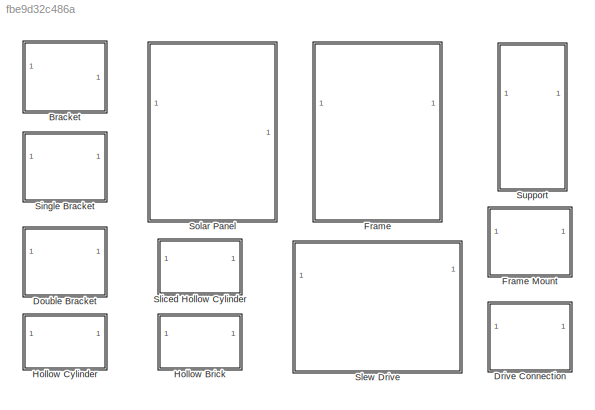
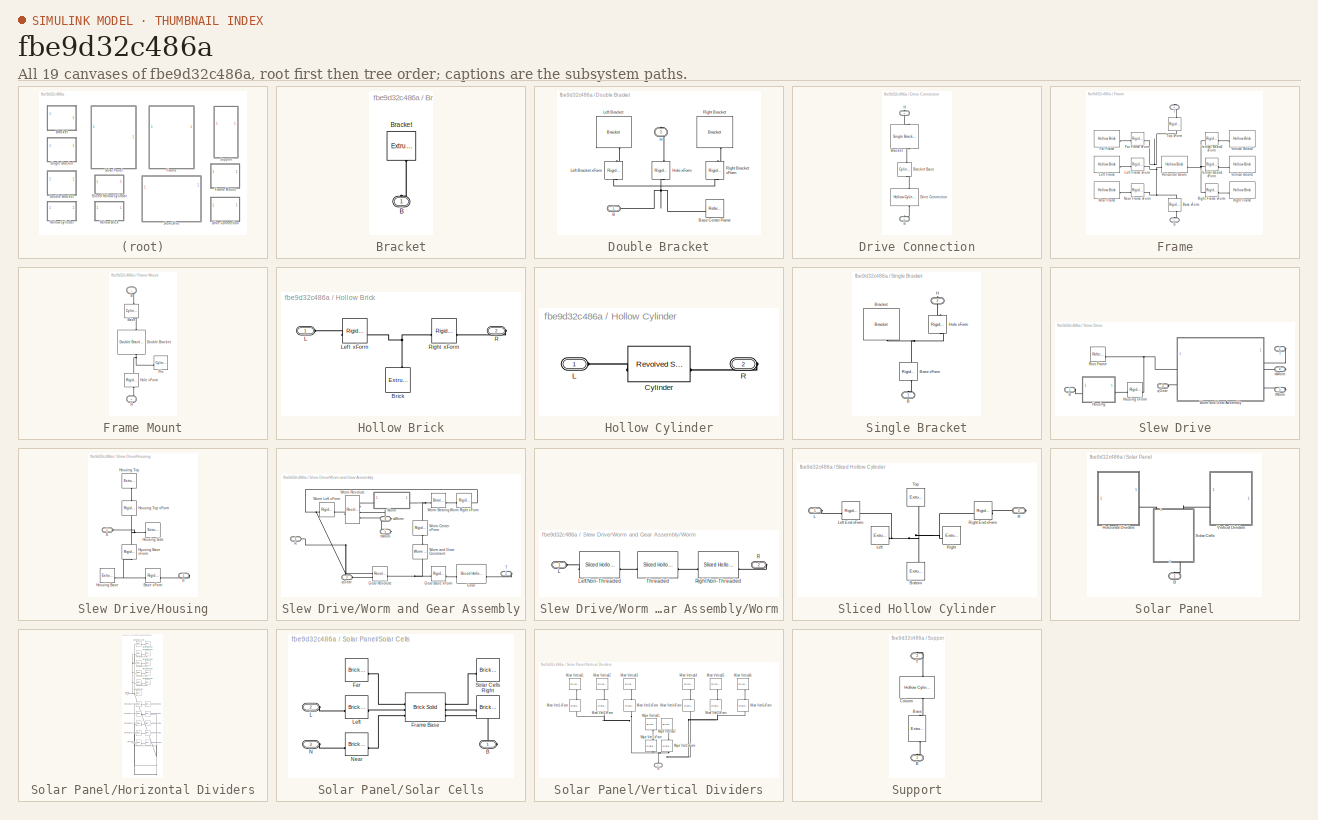
[diagram: thumbnail index - all 19 canvases of the model, root first then tree order]
MODEL slx_fbe9d32c486a
KIND library
CONFIG AbsTol = auto
CONFIG EnableMultiTasking = off
CONFIG FixedStep = auto
CONFIG MaxStep = auto
CONFIG MinStep = auto
CONFIG RelTol = 1e-3
CONFIG SampleTimeConstraint = Unconstrained
CONFIG SolverName = VariableStepAuto
CONFIG StartTime = 0.0
CONFIG StopTime = 10.0
BLOCK [SubSystem] Bracket
BLOCK [PMIOPort] Bracket/B
  NameLocation = right
  Side = Left
BLOCK [Reference] Bracket/Bracket  REF=sm_lib/Body Elements/Extruded Solid
  NameLocation = right
  SourceBlock = sm_lib/Body Elements/Extruded Solid
  SourceType = Extruded Solid
BLOCK [SubSystem] Double Bracket
BLOCK [PMIOPort] Double Bracket/B
  Side = Left
BLOCK [Reference] Double Bracket/Base Center Frame  REF=sm_lib/Frames and
Transforms/Reference
Frame
  SourceBlock = sm_lib/Frames and\nTransforms/Reference\nFrame
  SourceType = Reference\nFrame
BLOCK [PMIOPort] Double Bracket/H
  NameLocation = right
  Port = 2
  Side = Right
BLOCK [Reference] Double Bracket/Hole xForm  REF=sm_lib/Frames and
Transforms/Rigid
Transform
  NameLocation = right
  SourceBlock = sm_lib/Frames and\nTransforms/Rigid\nTransform
  SourceType = Rigid\nTransform
BLOCK [Reference] Double Bracket/Left Bracket  REF=$bdroot/Bracket
  NameLocation = left
  SourceBlock = $bdroot/Bracket
  SourceType = Bracket
BLOCK [Reference] Double Bracket/Left Bracket xForm  REF=sm_lib/Frames and
Transforms/Rigid
Transform
  NameLocation = left
  SourceBlock = sm_lib/Frames and\nTransforms/Rigid\nTransform
  SourceType = Rigid\nTransform
BLOCK [Reference] Double Bracket/Right Bracket  REF=$bdroot/Bracket
  NameLocation = right
  SourceBlock = $bdroot/Bracket
  SourceType = Bracket
BLOCK [Reference] Double Bracket/Right Bracket xForm  REF=sm_lib/Frames and
Transforms/Rigid
Transform
  NameLocation = right
  SourceBlock = sm_lib/Frames and\nTransforms/Rigid\nTransform
  SourceType = Rigid\nTransform
BLOCK [SubSystem] Drive Connection
BLOCK [PMIOPort] Drive Connection/B
  NameLocation = left
  Side = Left
BLOCK [Reference] Drive Connection/Bracket  REF=$bdroot/Single Bracket
  NameLocation = left
  SourceBlock = $bdroot/Single Bracket
  SourceType = Single Bracket
BLOCK [Reference] Drive Connection/Bracket Base  REF=sm_lib/Body Elements/Cylindrical Solid
  NameLocation = left
  SourceBlock = sm_lib/Body Elements/Cylindrical Solid
  SourceType = Cylindrical Solid
BLOCK [Reference] Drive Connection/Drive Connection  REF=$bdroot/Hollow Cylinder
  NameLocation = left
  SourceBlock = $bdroot/Hollow Cylinder
  SourceType = Hollow Cylinder
BLOCK [PMIOPort] Drive Connection/H
  NameLocation = left
  Port = 2
  Side = Right
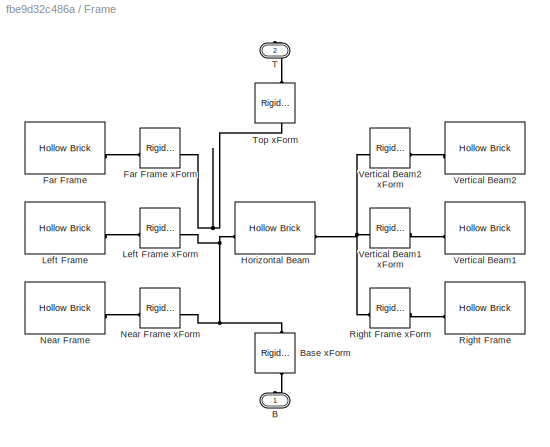
BLOCK [SubSystem] Frame
BLOCK [SubSystem] Frame Mount
BLOCK [PMIOPort] Frame Mount/B
  NameLocation = left
  Side = Left
BLOCK [Reference] Frame Mount/Base  REF=sm_lib/Body Elements/Cylindrical Solid
  NameLocation = left
  SourceBlock = sm_lib/Body Elements/Cylindrical Solid
  SourceType = Cylindrical Solid
BLOCK [Reference] Frame Mount/Double Bracket  REF=$bdroot/Double Bracket
  NameLocation = left
  SourceBlock = $bdroot/Double Bracket
  SourceType = Double Bracket
BLOCK [PMIOPort] Frame Mount/H
  NameLocation = left
  Port = 2
  Side = Right
BLOCK [Reference] Frame Mount/Hole xForm  REF=sm_lib/Frames and
Transforms/Rigid
Transform
  NameLocation = left
  SourceBlock = sm_lib/Frames and\nTransforms/Rigid\nTransform
  SourceType = Rigid\nTransform
BLOCK [Reference] Frame Mount/Pin  REF=sm_lib/Body Elements/Cylindrical Solid
  SourceBlock = sm_lib/Body Elements/Cylindrical Solid
  SourceType = Cylindrical Solid
BLOCK [PMIOPort] Frame/B
  NameLocation = right
  Side = Left
BLOCK [Reference] Frame/Base xForm  REF=sm_lib/Frames and
Transforms/Rigid
Transform
  NameLocation = left
  SourceBlock = sm_lib/Frames and\nTransforms/Rigid\nTransform
  SourceType = Rigid\nTransform
BLOCK [Reference] Frame/Far Frame  REF=$bdroot/Hollow Brick
  SourceBlock = $bdroot/Hollow Brick
  SourceType = Hollow Brick
BLOCK [Reference] Frame/Far Frame xForm  REF=sm_lib/Frames and
Transforms/Rigid
Transform
  SourceBlock = sm_lib/Frames and\nTransforms/Rigid\nTransform
  SourceType = Rigid\nTransform
BLOCK [Reference] Frame/Horizontal Beam  REF=$bdroot/Hollow Brick
  SourceBlock = $bdroot/Hollow Brick
  SourceType = Hollow Brick
BLOCK [Reference] Frame/Left Frame  REF=$bdroot/Hollow Brick
  SourceBlock = $bdroot/Hollow Brick
  SourceType = Hollow Brick
BLOCK [Reference] Frame/Left Frame xForm  REF=sm_lib/Frames and
Transforms/Rigid
Transform
  SourceBlock = sm_lib/Frames and\nTransforms/Rigid\nTransform
  SourceType = Rigid\nTransform
BLOCK [Reference] Frame/Near Frame  REF=$bdroot/Hollow Brick
  SourceBlock = $bdroot/Hollow Brick
  SourceType = Hollow Brick
BLOCK [Reference] Frame/Near Frame xForm  REF=sm_lib/Frames and
Transforms/Rigid
Transform
  SourceBlock = sm_lib/Frames and\nTransforms/Rigid\nTransform
  SourceType = Rigid\nTransform
BLOCK [Reference] Frame/Right Frame  REF=$bdroot/Hollow Brick
  SourceBlock = $bdroot/Hollow Brick
  SourceType = Hollow Brick
BLOCK [Reference] Frame/Right Frame xForm  REF=sm_lib/Frames and
Transforms/Rigid
Transform
  SourceBlock = sm_lib/Frames and\nTransforms/Rigid\nTransform
  SourceType = Rigid\nTransform
BLOCK [PMIOPort] Frame/T
  NameLocation = left
  Port = 2
  Side = Right
BLOCK [Reference] Frame/Top xForm  REF=sm_lib/Frames and
Transforms/Rigid
Transform
  NameLocation = left
  SourceBlock = sm_lib/Frames and\nTransforms/Rigid\nTransform
  SourceType = Rigid\nTransform
BLOCK [Reference] Frame/Vertical Beam1  REF=$bdroot/Hollow Brick
  SourceBlock = $bdroot/Hollow Brick
  SourceType = Hollow Brick
BLOCK [Reference] Frame/Vertical Beam1 xForm  REF=sm_lib/Frames and
Transforms/Rigid
Transform
  SourceBlock = sm_lib/Frames and\nTransforms/Rigid\nTransform
  SourceType = Rigid\nTransform
BLOCK [Reference] Frame/Vertical Beam2  REF=$bdroot/Hollow Brick
  SourceBlock = $bdroot/Hollow Brick
  SourceType = Hollow Brick
BLOCK [Reference] Frame/Vertical Beam2 xForm  REF=sm_lib/Frames and
Transforms/Rigid
Transform
  SourceBlock = sm_lib/Frames and\nTransforms/Rigid\nTransform
  SourceType = Rigid\nTransform
BLOCK [SubSystem] Hollow Brick
BLOCK [Reference] Hollow Brick/Brick  REF=sm_lib/Body Elements/Extruded Solid
  NameLocation = right
  SourceBlock = sm_lib/Body Elements/Extruded Solid
  SourceType = Extruded Solid
BLOCK [PMIOPort] Hollow Brick/L
  Side = Left
BLOCK [Reference] Hollow Brick/Left xForm  REF=sm_lib/Frames and
Transforms/Rigid
Transform
  SourceBlock = sm_lib/Frames and\nTransforms/Rigid\nTransform
  SourceType = Rigid\nTransform
BLOCK [PMIOPort] Hollow Brick/R
  Port = 2
  Side = Right
BLOCK [Reference] Hollow Brick/Right xForm  REF=sm_lib/Frames and
Transforms/Rigid
Transform
  SourceBlock = sm_lib/Frames and\nTransforms/Rigid\nTransform
  SourceType = Rigid\nTransform
BLOCK [SubSystem] Hollow Cylinder
BLOCK [Reference] Hollow Cylinder/Cylinder  REF=sm_lib/Body Elements/Revolved Solid
  SourceBlock = sm_lib/Body Elements/Revolved Solid
  SourceType = Revolved Solid
BLOCK [PMIOPort] Hollow Cylinder/L
  Side = Left
BLOCK [PMIOPort] Hollow Cylinder/R
  Port = 2
  Side = Right
BLOCK [SubSystem] Single Bracket
BLOCK [PMIOPort] Single Bracket/B
  NameLocation = right
  Side = Left
BLOCK [Reference] Single Bracket/Base xForm  REF=sm_lib/Frames and
Transforms/Rigid
Transform
  NameLocation = left
  SourceBlock = sm_lib/Frames and\nTransforms/Rigid\nTransform
  SourceType = Rigid\nTransform
BLOCK [Reference] Single Bracket/Bracket  REF=$bdroot/Bracket
  NameLocation = left
  SourceBlock = $bdroot/Bracket
  SourceType = Bracket
BLOCK [PMIOPort] Single Bracket/H
  NameLocation = right
  Port = 2
  Side = Right
BLOCK [Reference] Single Bracket/Hole xForm  REF=sm_lib/Frames and
Transforms/Rigid
Transform
  NameLocation = right
  SourceBlock = sm_lib/Frames and\nTransforms/Rigid\nTransform
  SourceType = Rigid\nTransform
BLOCK [SubSystem] Slew Drive
  LibrarySourceBlock = sm_solar_tracker_lib/Slew Drive
BLOCK [PMIOPort] Slew Drive/B
  Side = Left
BLOCK [SubSystem] Slew Drive/Housing
BLOCK [Reference] Slew Drive/Housing xForm  REF=sm_lib/Frames and
Transforms/Rigid
Transform
  SourceBlock = sm_lib/Frames and\nTransforms/Rigid\nTransform
  SourceType = Rigid\nTransform
BLOCK [PMIOPort] Slew Drive/Housing/B
  Port = 2
  Side = Right
BLOCK [Reference] Slew Drive/Housing/Base xForm  REF=sm_lib/Frames and
Transforms/Rigid
Transform
  SourceBlock = sm_lib/Frames and\nTransforms/Rigid\nTransform
  SourceType = Rigid\nTransform
BLOCK [Reference] Slew Drive/Housing/Housing Base  REF=sm_lib/Body Elements/Extruded Solid
  SourceBlock = sm_lib/Body Elements/Extruded Solid
  SourceType = Extruded Solid
BLOCK [Reference] Slew Drive/Housing/Housing Base xForm  REF=sm_lib/Frames and
Transforms/Rigid
Transform
  NameLocation = left
  SourceBlock = sm_lib/Frames and\nTransforms/Rigid\nTransform
  SourceType = Rigid\nTransform
BLOCK [Reference] Slew Drive/Housing/Housing Side  REF=sm_lib/Body Elements/Extruded Solid
  SourceBlock = sm_lib/Body Elements/Extruded Solid
  SourceType = Extruded Solid
BLOCK [Reference] Slew Drive/Housing/Housing Top  REF=sm_lib/Body Elements/Extruded Solid
  NameLocation = left
  SourceBlock = sm_lib/Body Elements/Extruded Solid
  SourceType = Extruded Solid
BLOCK [Reference] Slew Drive/Housing/Housing Top xForm  REF=sm_lib/Frames and
Transforms/Rigid
Transform
  NameLocation = left
  SourceBlock = sm_lib/Frames and\nTransforms/Rigid\nTransform
  SourceType = Rigid\nTransform
BLOCK [PMIOPort] Slew Drive/Housing/S
  Side = Left
BLOCK [Reference] Slew Drive/Root Frame  REF=sm_lib/Frames and
Transforms/Reference
Frame
  SourceBlock = sm_lib/Frames and\nTransforms/Reference\nFrame
  SourceType = Reference\nFrame
BLOCK [PMIOPort] Slew Drive/T
  Port = 2
  Side = Right
BLOCK [SubSystem] Slew Drive/Worm and Gear Assembly
BLOCK [Reference] Slew Drive/Worm and Gear Assembly/Gear  REF=$bdroot/Sliced Hollow Cylinder
  SourceBlock = $bdroot/Sliced Hollow Cylinder
  SourceType = Sliced Hollow Cylinder
BLOCK [Reference] Slew Drive/Worm and Gear Assembly/Gear Base xForm  REF=sm_lib/Frames and
Transforms/Rigid
Transform
  SourceBlock = sm_lib/Frames and\nTransforms/Rigid\nTransform
  SourceType = Rigid\nTransform
BLOCK [Reference] Slew Drive/Worm and Gear Assembly/Gear Revolute  REF=sm_lib/Joints/Revolute Joint
  SourceBlock = sm_lib/Joints/Revolute Joint
  SourceType = Revolute Joint
BLOCK [PMIOPort] Slew Drive/Worm and Gear Assembly/R
  Side = Left
BLOCK [PMIOPort] Slew Drive/Worm and Gear Assembly/T
  Port = 2
  Side = Right
BLOCK [SubSystem] Slew Drive/Worm and Gear Assembly/Worm
BLOCK [Reference] Slew Drive/Worm and Gear Assembly/Worm Bearing  REF=sm_lib/Joints/Bearing Joint
  SourceBlock = sm_lib/Joints/Bearing Joint
  SourceType = Bearing Joint
BLOCK [Reference] Slew Drive/Worm and Gear Assembly/Worm Center xForm  REF=sm_lib/Frames and
Transforms/Rigid
Transform
  NameLocation = right
  SourceBlock = sm_lib/Frames and\nTransforms/Rigid\nTransform
  SourceType = Rigid\nTransform
BLOCK [Reference] Slew Drive/Worm and Gear Assembly/Worm Left xForm  REF=sm_lib/Frames and
Transforms/Rigid
Transform
  SourceBlock = sm_lib/Frames and\nTransforms/Rigid\nTransform
  SourceType = Rigid\nTransform
BLOCK [Reference] Slew Drive/Worm and Gear Assembly/Worm Revolute  REF=sm_lib/Joints/Revolute Joint
  SourceBlock = sm_lib/Joints/Revolute Joint
  SourceType = Revolute Joint
BLOCK [Reference] Slew Drive/Worm and Gear Assembly/Worm Right xForm  REF=sm_lib/Frames and
Transforms/Rigid
Transform
  SourceBlock = sm_lib/Frames and\nTransforms/Rigid\nTransform
  SourceType = Rigid\nTransform
BLOCK [Reference] Slew Drive/Worm and Gear Assembly/Worm and Gear Constraint  REF=sm_lib/Gears and
Couplings/Gears/Worm and Gear
Constraint
  NameLocation = right
  SourceBlock = sm_lib/Gears and\nCouplings/Gears/Worm and Gear\nConstraint
  SourceType = Worm and Gear\nConstraint
BLOCK [PMIOPort] Slew Drive/Worm and Gear Assembly/Worm/L
  Side = Left
BLOCK [Reference] Slew Drive/Worm and Gear Assembly/Worm/Left Non-Threaded  REF=$bdroot/Sliced Hollow Cylinder
  SourceBlock = $bdroot/Sliced Hollow Cylinder
  SourceType = Sliced Hollow Cylinder
BLOCK [PMIOPort] Slew Drive/Worm and Gear Assembly/Worm/R
  Port = 2
  Side = Right
BLOCK [Reference] Slew Drive/Worm and Gear Assembly/Worm/Right Non-Threaded  REF=$bdroot/Sliced Hollow Cylinder
  SourceBlock = $bdroot/Sliced Hollow Cylinder
  SourceType = Sliced Hollow Cylinder
BLOCK [Reference] Slew Drive/Worm and Gear Assembly/Worm/Threaded  REF=$bdroot/Sliced Hollow Cylinder
  SourceBlock = $bdroot/Sliced Hollow Cylinder
  SourceType = Sliced Hollow Cylinder
BLOCK [PMIOPort] Slew Drive/Worm and Gear Assembly/qGear
  Port = 3
  Side = Left
BLOCK [PMIOPort] Slew Drive/Worm and Gear Assembly/tWorm
  Port = 5
  Side = Right
BLOCK [PMIOPort] Slew Drive/Worm and Gear Assembly/wWorm
  Port = 4
  Side = Right
BLOCK [PMIOPort] Slew Drive/qGear
  Port = 3
  Side = Left
BLOCK [PMIOPort] Slew Drive/tWorm
  Port = 5
  Side = Right
BLOCK [PMIOPort] Slew Drive/wWorm
  Port = 4
  Side = Right
BLOCK [SubSystem] Sliced Hollow Cylinder
BLOCK [Reference] Sliced Hollow Cylinder/Bottom  REF=sm_lib/Body Elements/Extruded Solid
  NameLocation = left
  SourceBlock = sm_lib/Body Elements/Extruded Solid
  SourceType = Extruded Solid
BLOCK [PMIOPort] Sliced Hollow Cylinder/L
  Side = Left
BLOCK [Reference] Sliced Hollow Cylinder/Left  REF=sm_lib/Body Elements/Extruded Solid
  SourceBlock = sm_lib/Body Elements/Extruded Solid
  SourceType = Extruded Solid
BLOCK [Reference] Sliced Hollow Cylinder/Left End xForm  REF=sm_lib/Frames and
Transforms/Rigid
Transform
  SourceBlock = sm_lib/Frames and\nTransforms/Rigid\nTransform
  SourceType = Rigid\nTransform
BLOCK [PMIOPort] Sliced Hollow Cylinder/R
  Port = 2
  Side = Right
BLOCK [Reference] Sliced Hollow Cylinder/Right  REF=sm_lib/Body Elements/Extruded Solid
  SourceBlock = sm_lib/Body Elements/Extruded Solid
  SourceType = Extruded Solid
BLOCK [Reference] Sliced Hollow Cylinder/Right End xForm  REF=sm_lib/Frames and
Transforms/Rigid
Transform
  SourceBlock = sm_lib/Frames and\nTransforms/Rigid\nTransform
  SourceType = Rigid\nTransform
BLOCK [Reference] Sliced Hollow Cylinder/Top  REF=sm_lib/Body Elements/Extruded Solid
  NameLocation = left
  SourceBlock = sm_lib/Body Elements/Extruded Solid
  SourceType = Extruded Solid
BLOCK [SubSystem] Solar Panel
BLOCK [PMIOPort] Solar Panel/B
  NameLocation = right
  Side = Left
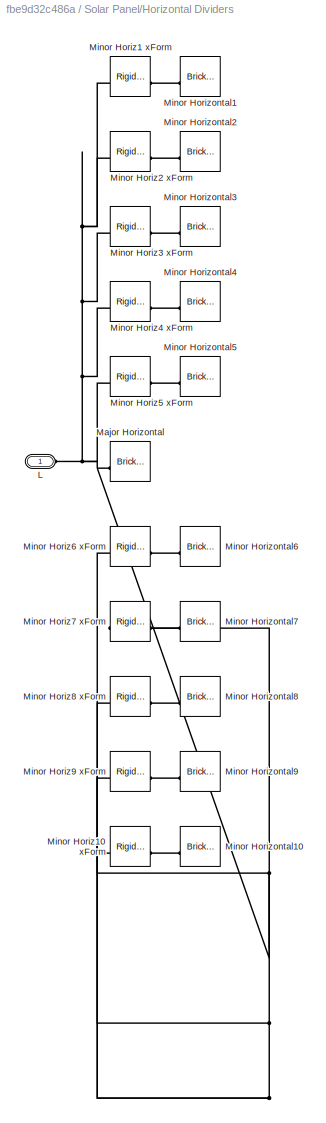
BLOCK [SubSystem] Solar Panel/Horizontal Dividers
BLOCK [PMIOPort] Solar Panel/Horizontal Dividers/L
  Side = Left
BLOCK [Reference] Solar Panel/Horizontal Dividers/Major Horizontal  REF=sm_lib/Body Elements/Brick Solid
  SourceBlock = sm_lib/Body Elements/Brick Solid
  SourceType = Brick Solid
BLOCK [Reference] Solar Panel/Horizontal Dividers/Minor Horiz1 xForm  REF=sm_lib/Frames and
Transforms/Rigid
Transform
  SourceBlock = sm_lib/Frames and\nTransforms/Rigid\nTransform
  SourceType = Rigid\nTransform
BLOCK [Reference] Solar Panel/Horizontal Dividers/Minor Horiz10 xForm  REF=sm_lib/Frames and
Transforms/Rigid
Transform
  SourceBlock = sm_lib/Frames and\nTransforms/Rigid\nTransform
  SourceType = Rigid\nTransform
BLOCK [Reference] Solar Panel/Horizontal Dividers/Minor Horiz2 xForm  REF=sm_lib/Frames and
Transforms/Rigid
Transform
  SourceBlock = sm_lib/Frames and\nTransforms/Rigid\nTransform
  SourceType = Rigid\nTransform
BLOCK [Reference] Solar Panel/Horizontal Dividers/Minor Horiz3 xForm  REF=sm_lib/Frames and
Transforms/Rigid
Transform
  SourceBlock = sm_lib/Frames and\nTransforms/Rigid\nTransform
  SourceType = Rigid\nTransform
BLOCK [Reference] Solar Panel/Horizontal Dividers/Minor Horiz4 xForm  REF=sm_lib/Frames and
Transforms/Rigid
Transform
  SourceBlock = sm_lib/Frames and\nTransforms/Rigid\nTransform
  SourceType = Rigid\nTransform
BLOCK [Reference] Solar Panel/Horizontal Dividers/Minor Horiz5 xForm  REF=sm_lib/Frames and
Transforms/Rigid
Transform
  SourceBlock = sm_lib/Frames and\nTransforms/Rigid\nTransform
  SourceType = Rigid\nTransform
BLOCK [Reference] Solar Panel/Horizontal Dividers/Minor Horiz6 xForm  REF=sm_lib/Frames and
Transforms/Rigid
Transform
  SourceBlock = sm_lib/Frames and\nTransforms/Rigid\nTransform
  SourceType = Rigid\nTransform
BLOCK [Reference] Solar Panel/Horizontal Dividers/Minor Horiz7 xForm  REF=sm_lib/Frames and
Transforms/Rigid
Transform
  SourceBlock = sm_lib/Frames and\nTransforms/Rigid\nTransform
  SourceType = Rigid\nTransform
BLOCK [Reference] Solar Panel/Horizontal Dividers/Minor Horiz8 xForm  REF=sm_lib/Frames and
Transforms/Rigid
Transform
  SourceBlock = sm_lib/Frames and\nTransforms/Rigid\nTransform
  SourceType = Rigid\nTransform
BLOCK [Reference] Solar Panel/Horizontal Dividers/Minor Horiz9 xForm  REF=sm_lib/Frames and
Transforms/Rigid
Transform
  SourceBlock = sm_lib/Frames and\nTransforms/Rigid\nTransform
  SourceType = Rigid\nTransform
BLOCK [Reference] Solar Panel/Horizontal Dividers/Minor Horizontal1  REF=sm_lib/Body Elements/Brick Solid
  SourceBlock = sm_lib/Body Elements/Brick Solid
  SourceType = Brick Solid
BLOCK [Reference] Solar Panel/Horizontal Dividers/Minor Horizontal10  REF=sm_lib/Body Elements/Brick Solid
  SourceBlock = sm_lib/Body Elements/Brick Solid
  SourceType = Brick Solid
BLOCK [Reference] Solar Panel/Horizontal Dividers/Minor Horizontal2  REF=sm_lib/Body Elements/Brick Solid
  SourceBlock = sm_lib/Body Elements/Brick Solid
  SourceType = Brick Solid
BLOCK [Reference] Solar Panel/Horizontal Dividers/Minor Horizontal3  REF=sm_lib/Body Elements/Brick Solid
  SourceBlock = sm_lib/Body Elements/Brick Solid
  SourceType = Brick Solid
BLOCK [Reference] Solar Panel/Horizontal Dividers/Minor Horizontal4  REF=sm_lib/Body Elements/Brick Solid
  SourceBlock = sm_lib/Body Elements/Brick Solid
  SourceType = Brick Solid
BLOCK [Reference] Solar Panel/Horizontal Dividers/Minor Horizontal5  REF=sm_lib/Body Elements/Brick Solid
  SourceBlock = sm_lib/Body Elements/Brick Solid
  SourceType = Brick Solid
BLOCK [Reference] Solar Panel/Horizontal Dividers/Minor Horizontal6  REF=sm_lib/Body Elements/Brick Solid
  SourceBlock = sm_lib/Body Elements/Brick Solid
  SourceType = Brick Solid
BLOCK [Reference] Solar Panel/Horizontal Dividers/Minor Horizontal7  REF=sm_lib/Body Elements/Brick Solid
  SourceBlock = sm_lib/Body Elements/Brick Solid
  SourceType = Brick Solid
BLOCK [Reference] Solar Panel/Horizontal Dividers/Minor Horizontal8  REF=sm_lib/Body Elements/Brick Solid
  SourceBlock = sm_lib/Body Elements/Brick Solid
  SourceType = Brick Solid
BLOCK [Reference] Solar Panel/Horizontal Dividers/Minor Horizontal9  REF=sm_lib/Body Elements/Brick Solid
  SourceBlock = sm_lib/Body Elements/Brick Solid
  SourceType = Brick Solid
BLOCK [SubSystem] Solar Panel/Solar Cells
  NameLocation = right
BLOCK [PMIOPort] Solar Panel/Solar Cells/B
  Side = Right
BLOCK [Reference] Solar Panel/Solar Cells/Far  REF=sm_lib/Body Elements/Brick Solid
  SourceBlock = sm_lib/Body Elements/Brick Solid
  SourceType = Brick Solid
BLOCK [Reference] Solar Panel/Solar Cells/Frame Base  REF=sm_lib/Body Elements/Brick Solid
  SourceBlock = sm_lib/Body Elements/Brick Solid
  SourceType = Brick Solid
BLOCK [PMIOPort] Solar Panel/Solar Cells/L
  Port = 2
  Side = Left
BLOCK [Reference] Solar Panel/Solar Cells/Left  REF=sm_lib/Body Elements/Brick Solid
  SourceBlock = sm_lib/Body Elements/Brick Solid
  SourceType = Brick Solid
BLOCK [PMIOPort] Solar Panel/Solar Cells/N
  Port = 3
  Side = Left
BLOCK [Reference] Solar Panel/Solar Cells/Near  REF=sm_lib/Body Elements/Brick Solid
  SourceBlock = sm_lib/Body Elements/Brick Solid
  SourceType = Brick Solid
BLOCK [Reference] Solar Panel/Solar Cells/Right  REF=sm_lib/Body Elements/Brick Solid
  SourceBlock = sm_lib/Body Elements/Brick Solid
  SourceType = Brick Solid
BLOCK [Reference] Solar Panel/Solar Cells/Solar Cells  REF=sm_lib/Body Elements/Brick Solid
  SourceBlock = sm_lib/Body Elements/Brick Solid
  SourceType = Brick Solid
BLOCK [SubSystem] Solar Panel/Vertical Dividers
BLOCK [Reference] Solar Panel/Vertical Dividers/Major Vert1 xForm  REF=sm_lib/Frames and
Transforms/Rigid
Transform
  NameLocation = left
  SourceBlock = sm_lib/Frames and\nTransforms/Rigid\nTransform
  SourceType = Rigid\nTransform
BLOCK [Reference] Solar Panel/Vertical Dividers/Major Vert2 xForm  REF=sm_lib/Frames and
Transforms/Rigid
Transform
  NameLocation = right
  SourceBlock = sm_lib/Frames and\nTransforms/Rigid\nTransform
  SourceType = Rigid\nTransform
BLOCK [Reference] Solar Panel/Vertical Dividers/Major Vertical1  REF=sm_lib/Body Elements/Brick Solid
  NameLocation = left
  SourceBlock = sm_lib/Body Elements/Brick Solid
  SourceType = Brick Solid
BLOCK [Reference] Solar Panel/Vertical Dividers/Major Vertical2  REF=sm_lib/Body Elements/Brick Solid
  NameLocation = right
  SourceBlock = sm_lib/Body Elements/Brick Solid
  SourceType = Brick Solid
BLOCK [Reference] Solar Panel/Vertical Dividers/Minor Vert1 xForm  REF=sm_lib/Frames and
Transforms/Rigid
Transform
  NameLocation = right
  SourceBlock = sm_lib/Frames and\nTransforms/Rigid\nTransform
  SourceType = Rigid\nTransform
BLOCK [Reference] Solar Panel/Vertical Dividers/Minor Vert2 xForm  REF=sm_lib/Frames and
Transforms/Rigid
Transform
  NameLocation = right
  SourceBlock = sm_lib/Frames and\nTransforms/Rigid\nTransform
  SourceType = Rigid\nTransform
BLOCK [Reference] Solar Panel/Vertical Dividers/Minor Vert3 xForm  REF=sm_lib/Frames and
Transforms/Rigid
Transform
  NameLocation = right
  SourceBlock = sm_lib/Frames and\nTransforms/Rigid\nTransform
  SourceType = Rigid\nTransform
BLOCK [Reference] Solar Panel/Vertical Dividers/Minor Vert4 xForm  REF=sm_lib/Frames and
Transforms/Rigid
Transform
  NameLocation = left
  SourceBlock = sm_lib/Frames and\nTransforms/Rigid\nTransform
  SourceType = Rigid\nTransform
BLOCK [Reference] Solar Panel/Vertical Dividers/Minor Vert5 xForm  REF=sm_lib/Frames and
Transforms/Rigid
Transform
  NameLocation = left
  SourceBlock = sm_lib/Frames and\nTransforms/Rigid\nTransform
  SourceType = Rigid\nTransform
BLOCK [Reference] Solar Panel/Vertical Dividers/Minor Vert6 xForm  REF=sm_lib/Frames and
Transforms/Rigid
Transform
  NameLocation = left
  SourceBlock = sm_lib/Frames and\nTransforms/Rigid\nTransform
  SourceType = Rigid\nTransform
BLOCK [Reference] Solar Panel/Vertical Dividers/Minor Vertical1  REF=sm_lib/Body Elements/Brick Solid
  NameLocation = right
  SourceBlock = sm_lib/Body Elements/Brick Solid
  SourceType = Brick Solid
BLOCK [Reference] Solar Panel/Vertical Dividers/Minor Vertical2  REF=sm_lib/Body Elements/Brick Solid
  NameLocation = right
  SourceBlock = sm_lib/Body Elements/Brick Solid
  SourceType = Brick Solid
BLOCK [Reference] Solar Panel/Vertical Dividers/Minor Vertical3  REF=sm_lib/Body Elements/Brick Solid
  NameLocation = right
  SourceBlock = sm_lib/Body Elements/Brick Solid
  SourceType = Brick Solid
BLOCK [Reference] Solar Panel/Vertical Dividers/Minor Vertical4  REF=sm_lib/Body Elements/Brick Solid
  NameLocation = left
  SourceBlock = sm_lib/Body Elements/Brick Solid
  SourceType = Brick Solid
BLOCK [Reference] Solar Panel/Vertical Dividers/Minor Vertical5  REF=sm_lib/Body Elements/Brick Solid
  NameLocation = left
  SourceBlock = sm_lib/Body Elements/Brick Solid
  SourceType = Brick Solid
BLOCK [Reference] Solar Panel/Vertical Dividers/Minor Vertical6  REF=sm_lib/Body Elements/Brick Solid
  NameLocation = left
  SourceBlock = sm_lib/Body Elements/Brick Solid
  SourceType = Brick Solid
BLOCK [PMIOPort] Solar Panel/Vertical Dividers/N
  NameLocation = right
  Side = Left
BLOCK [SubSystem] Support
BLOCK [PMIOPort] Support/B
  NameLocation = left
  Side = Left
BLOCK [Reference] Support/Base  REF=sm_lib/Body Elements/Extruded Solid
  NameLocation = left
  SourceBlock = sm_lib/Body Elements/Extruded Solid
  SourceType = Extruded Solid
BLOCK [Reference] Support/Column  REF=$bdroot/Hollow Cylinder
  NameLocation = left
  SourceBlock = $bdroot/Hollow Cylinder
  SourceType = Hollow Cylinder
BLOCK [PMIOPort] Support/T
  NameLocation = left
  Port = 2
  Side = Right
PLINE Bracket/B:RConn1 -- Bracket/Bracket:RConn1
PNET net1: Double Bracket/B:RConn1 -- Double Bracket/Base Center Frame:RConn1 -- Double Bracket/Hole xForm:LConn1 -- Double Bracket/Left Bracket xForm:LConn1 -- Double Bracket/Right Bracket xForm:LConn1
PLINE Double Bracket/H:RConn1 -- Double Bracket/Hole xForm:RConn1
PLINE Double Bracket/Left Bracket xForm:RConn1 -- Double Bracket/Left Bracket:LConn1
PLINE Double Bracket/Right Bracket xForm:RConn1 -- Double Bracket/Right Bracket:LConn1
PLINE Drive Connection/B:RConn1 -- Drive Connection/Drive Connection:LConn1
PLINE Drive Connection/Bracket Base:LConn1 -- Drive Connection/Bracket:LConn1
PLINE Drive Connection/Bracket Base:RConn1 -- Drive Connection/Drive Connection:RConn1
PLINE Drive Connection/Bracket:RConn1 -- Drive Connection/H:RConn1
PLINE Frame Mount/B:RConn1 -- Frame Mount/Base:RConn1
PLINE Frame Mount/Base:LConn1 -- Frame Mount/Double Bracket:LConn1
PNET net2: Frame Mount/Double Bracket:RConn1 -- Frame Mount/Hole xForm:LConn1 -- Frame Mount/Pin:RConn1
PLINE Frame Mount/H:RConn1 -- Frame Mount/Hole xForm:RConn1
PLINE Frame/B:RConn1 -- Frame/Base xForm:RConn1
PNET net3: Frame/Base xForm:LConn1 -- Frame/Far Frame xForm:LConn1 -- Frame/Horizontal Beam:LConn1 -- Frame/Left Frame xForm:LConn1 -- Frame/Near Frame xForm:LConn1 -- Frame/Top xForm:LConn1
PLINE Frame/Far Frame xForm:RConn1 -- Frame/Far Frame:LConn1
PNET net4: Frame/Horizontal Beam:RConn1 -- Frame/Right Frame xForm:LConn1 -- Frame/Vertical Beam1 xForm:LConn1 -- Frame/Vertical Beam2 xForm:LConn1
PLINE Frame/Left Frame xForm:RConn1 -- Frame/Left Frame:LConn1
PLINE Frame/Near Frame xForm:RConn1 -- Frame/Near Frame:LConn1
PLINE Frame/Right Frame xForm:RConn1 -- Frame/Right Frame:LConn1
PLINE Frame/T:RConn1 -- Frame/Top xForm:RConn1
PLINE Frame/Vertical Beam1 xForm:RConn1 -- Frame/Vertical Beam1:LConn1
PLINE Frame/Vertical Beam2 xForm:RConn1 -- Frame/Vertical Beam2:LConn1
PNET net5: Hollow Brick/Brick:RConn1 -- Hollow Brick/Left xForm:LConn1 -- Hollow Brick/Right xForm:LConn1
PLINE Hollow Brick/L:RConn1 -- Hollow Brick/Left xForm:RConn1
PLINE Hollow Brick/R:RConn1 -- Hollow Brick/Right xForm:RConn1
PLINE Hollow Cylinder/Cylinder:LConn1 -- Hollow Cylinder/L:RConn1
PLINE Hollow Cylinder/Cylinder:RConn1 -- Hollow Cylinder/R:RConn1
PLINE Single Bracket/B:RConn1 -- Single Bracket/Base xForm:RConn1
PNET net6: Single Bracket/Base xForm:LConn1 -- Single Bracket/Bracket:LConn1 -- Single Bracket/Hole xForm:LConn1
PLINE Single Bracket/H:RConn1 -- Single Bracket/Hole xForm:RConn1
PLINE Slew Drive/B:RConn1 -- Slew Drive/Housing:RConn1
PNET net7: Slew Drive/Housing xForm:LConn1 -- Slew Drive/Root Frame:RConn1 -- Slew Drive/Worm and Gear Assembly:LConn1
PLINE Slew Drive/Housing xForm:RConn1 -- Slew Drive/Housing:LConn1
PLINE Slew Drive/Housing/B:RConn1 -- Slew Drive/Housing/Base xForm:RConn1
PNET net8: Slew Drive/Housing/Base xForm:LConn1 -- Slew Drive/Housing/Housing Base xForm:RConn1 -- Slew Drive/Housing/Housing Base:RConn1
PNET net9: Slew Drive/Housing/Housing Base xForm:LConn1 -- Slew Drive/Housing/Housing Side:RConn1 -- Slew Drive/Housing/Housing Top xForm:LConn1 -- Slew Drive/Housing/S:RConn1
PLINE Slew Drive/Housing/Housing Top xForm:RConn1 -- Slew Drive/Housing/Housing Top:RConn1
PLINE Slew Drive/T:RConn1 -- Slew Drive/Worm and Gear Assembly:RConn1
PNET net10: Slew Drive/Worm and Gear Assembly/Gear Base xForm:LConn1 -- Slew Drive/Worm and Gear Assembly/Gear Revolute:RConn1 -- Slew Drive/Worm and Gear Assembly/Worm and Gear Constraint:RConn1
PLINE Slew Drive/Worm and Gear Assembly/Gear Base xForm:RConn1 -- Slew Drive/Worm and Gear Assembly/Gear:LConn1
PNET net11: Slew Drive/Worm and Gear Assembly/Gear Revolute:LConn1 -- Slew Drive/Worm and Gear Assembly/R:RConn1 -- Slew Drive/Worm and Gear Assembly/Worm Left xForm:LConn1 -- Slew Drive/Worm and Gear Assembly/Worm Right xForm:LConn1
PLINE Slew Drive/Worm and Gear Assembly/Gear Revolute:LConn2 -- Slew Drive/Worm and Gear Assembly/qGear:RConn1
PLINE Slew Drive/Worm and Gear Assembly/Gear:RConn1 -- Slew Drive/Worm and Gear Assembly/T:RConn1
PLINE Slew Drive/Worm and Gear Assembly/Worm Bearing:LConn1 -- Slew Drive/Worm and Gear Assembly/Worm Right xForm:RConn1
PNET net12: Slew Drive/Worm and Gear Assembly/Worm Bearing:RConn1 -- Slew Drive/Worm and Gear Assembly/Worm Center xForm:LConn1 -- Slew Drive/Worm and Gear Assembly/Worm:RConn1
PLINE Slew Drive/Worm and Gear Assembly/Worm Center xForm:RConn1 -- Slew Drive/Worm and Gear Assembly/Worm and Gear Constraint:LConn1
PLINE Slew Drive/Worm and Gear Assembly/Worm Left xForm:RConn1 -- Slew Drive/Worm and Gear Assembly/Worm Revolute:LConn1
PLINE Slew Drive/Worm and Gear Assembly/Worm Revolute:RConn1 -- Slew Drive/Worm and Gear Assembly/Worm:LConn1
PLINE Slew Drive/Worm and Gear Assembly/Worm Revolute:RConn2 -- Slew Drive/Worm and Gear Assembly/wWorm:RConn1
PLINE Slew Drive/Worm and Gear Assembly/Worm Revolute:RConn3 -- Slew Drive/Worm and Gear Assembly/tWorm:RConn1
PLINE Slew Drive/Worm and Gear Assembly/Worm/L:RConn1 -- Slew Drive/Worm and Gear Assembly/Worm/Left Non-Threaded:LConn1
PLINE Slew Drive/Worm and Gear Assembly/Worm/Left Non-Threaded:RConn1 -- Slew Drive/Worm and Gear Assembly/Worm/Threaded:LConn1
PLINE Slew Drive/Worm and Gear Assembly/Worm/R:RConn1 -- Slew Drive/Worm and Gear Assembly/Worm/Right Non-Threaded:RConn1
PLINE Slew Drive/Worm and Gear Assembly/Worm/Right Non-Threaded:LConn1 -- Slew Drive/Worm and Gear Assembly/Worm/Threaded:RConn1
PLINE Slew Drive/Worm and Gear Assembly:LConn2 -- Slew Drive/qGear:RConn1
PLINE Slew Drive/Worm and Gear Assembly:RConn2 -- Slew Drive/wWorm:RConn1
PLINE Slew Drive/Worm and Gear Assembly:RConn3 -- Slew Drive/tWorm:RConn1
PNET net13: Sliced Hollow Cylinder/Bottom:RConn1 -- Sliced Hollow Cylinder/Left End xForm:LConn1 -- Sliced Hollow Cylinder/Left:RConn1 -- Sliced Hollow Cylinder/Right End xForm:LConn1 -- Sliced Hollow Cylinder/Right:RConn1 -- Sliced Hollow Cylinder/Top:RConn1
PLINE Sliced Hollow Cylinder/L:RConn1 -- Sliced Hollow Cylinder/Left End xForm:RConn1
PLINE Sliced Hollow Cylinder/R:RConn1 -- Sliced Hollow Cylinder/Right End xForm:RConn1
PLINE Solar Panel/B:RConn1 -- Solar Panel/Solar Cells:RConn1
PNET net14: Solar Panel/Horizontal Dividers/L:RConn1 -- Solar Panel/Horizontal Dividers/Major Horizontal:LConn1 -- Solar Panel/Horizontal Dividers/Minor Horiz1 xForm:LConn1 -- Solar Panel/Horizontal Dividers/Minor Horiz10 xForm:LConn1 -- Solar Panel/Horizontal Dividers/Minor Horiz2 xForm:LConn1 -- Solar Panel/Horizontal Dividers/Minor Horiz3 xForm:LConn1 -- Solar Panel/Horizontal Dividers/Minor Horiz4 xForm:LConn1 -- Solar Panel/Horizontal Dividers/Minor Horiz5 xForm:LConn1 -- Solar Panel/Horizontal Dividers/Minor Horiz6 xForm:LConn1 -- Solar Panel/Horizontal Dividers/Minor Horiz7 xForm:LConn1 -- Solar Panel/Horizontal Dividers/Minor Horiz8 xForm:LConn1 -- Solar Panel/Horizontal Dividers/Minor Horiz9 xForm:LConn1
PLINE Solar Panel/Horizontal Dividers/Minor Horiz1 xForm:RConn1 -- Solar Panel/Horizontal Dividers/Minor Horizontal1:LConn1
PLINE Solar Panel/Horizontal Dividers/Minor Horiz10 xForm:RConn1 -- Solar Panel/Horizontal Dividers/Minor Horizontal10:LConn1
PLINE Solar Panel/Horizontal Dividers/Minor Horiz2 xForm:RConn1 -- Solar Panel/Horizontal Dividers/Minor Horizontal2:LConn1
PLINE Solar Panel/Horizontal Dividers/Minor Horiz3 xForm:RConn1 -- Solar Panel/Horizontal Dividers/Minor Horizontal3:LConn1
PLINE Solar Panel/Horizontal Dividers/Minor Horiz4 xForm:RConn1 -- Solar Panel/Horizontal Dividers/Minor Horizontal4:LConn1
PLINE Solar Panel/Horizontal Dividers/Minor Horiz5 xForm:RConn1 -- Solar Panel/Horizontal Dividers/Minor Horizontal5:LConn1
PLINE Solar Panel/Horizontal Dividers/Minor Horiz6 xForm:RConn1 -- Solar Panel/Horizontal Dividers/Minor Horizontal6:LConn1
PLINE Solar Panel/Horizontal Dividers/Minor Horiz7 xForm:RConn1 -- Solar Panel/Horizontal Dividers/Minor Horizontal7:LConn1
PLINE Solar Panel/Horizontal Dividers/Minor Horiz8 xForm:RConn1 -- Solar Panel/Horizontal Dividers/Minor Horizontal8:LConn1
PLINE Solar Panel/Horizontal Dividers/Minor Horiz9 xForm:RConn1 -- Solar Panel/Horizontal Dividers/Minor Horizontal9:LConn1
PLINE Solar Panel/Horizontal Dividers:LConn1 -- Solar Panel/Solar Cells:LConn1
PLINE Solar Panel/Solar Cells/B:RConn1 -- Solar Panel/Solar Cells/Frame Base:RConn3
PLINE Solar Panel/Solar Cells/Far:LConn1 -- Solar Panel/Solar Cells/Frame Base:LConn1
PLINE Solar Panel/Solar Cells/Frame Base:LConn2 -- Solar Panel/Solar Cells/Left:LConn1
PLINE Solar Panel/Solar Cells/Frame Base:LConn3 -- Solar Panel/Solar Cells/Near:LConn1
PLINE Solar Panel/Solar Cells/Frame Base:RConn1 -- Solar Panel/Solar Cells/Solar Cells:LConn1
PLINE Solar Panel/Solar Cells/Frame Base:RConn2 -- Solar Panel/Solar Cells/Right:LConn1
PLINE Solar Panel/Solar Cells/L:RConn1 -- Solar Panel/Solar Cells/Left:RConn1
PLINE Solar Panel/Solar Cells/N:RConn1 -- Solar Panel/Solar Cells/Near:RConn1
PLINE Solar Panel/Solar Cells:LConn2 -- Solar Panel/Vertical Dividers:LConn1
PNET net15: Solar Panel/Vertical Dividers/Major Vert1 xForm:LConn1 -- Solar Panel/Vertical Dividers/Major Vert2 xForm:LConn1 -- Solar Panel/Vertical Dividers/Minor Vert1 xForm:LConn1 -- Solar Panel/Vertical Dividers/Minor Vert2 xForm:LConn1 -- Solar Panel/Vertical Dividers/Minor Vert3 xForm:LConn1 -- Solar Panel/Vertical Dividers/Minor Vert4 xForm:LConn1 -- Solar Panel/Vertical Dividers/Minor Vert5 xForm:LConn1 -- Solar Panel/Vertical Dividers/Minor Vert6 xForm:LConn1 -- Solar Panel/Vertical Dividers/N:RConn1
PLINE Solar Panel/Vertical Dividers/Major Vert1 xForm:RConn1 -- Solar Panel/Vertical Dividers/Major Vertical1:LConn1
PLINE Solar Panel/Vertical Dividers/Major Vert2 xForm:RConn1 -- Solar Panel/Vertical Dividers/Major Vertical2:LConn1
PLINE Solar Panel/Vertical Dividers/Minor Vert1 xForm:RConn1 -- Solar Panel/Vertical Dividers/Minor Vertical1:LConn1
PLINE Solar Panel/Vertical Dividers/Minor Vert2 xForm:RConn1 -- Solar Panel/Vertical Dividers/Minor Vertical2:LConn1
PLINE Solar Panel/Vertical Dividers/Minor Vert3 xForm:RConn1 -- Solar Panel/Vertical Dividers/Minor Vertical3:LConn1
PLINE Solar Panel/Vertical Dividers/Minor Vert4 xForm:RConn1 -- Solar Panel/Vertical Dividers/Minor Vertical4:LConn1
PLINE Solar Panel/Vertical Dividers/Minor Vert5 xForm:RConn1 -- Solar Panel/Vertical Dividers/Minor Vertical5:LConn1
PLINE Solar Panel/Vertical Dividers/Minor Vert6 xForm:RConn1 -- Solar Panel/Vertical Dividers/Minor Vertical6:LConn1
PLINE Support/B:RConn1 -- Support/Base:LConn1
PLINE Support/Base:RConn1 -- Support/Column:LConn1
PLINE Support/Column:RConn1 -- Support/T:RConn1
note: PNET lines group multi-terminal physical nets as a canonical sorted terminal list (undirected conserving connections); 2-terminal nets keep the pairwise PLINE form
